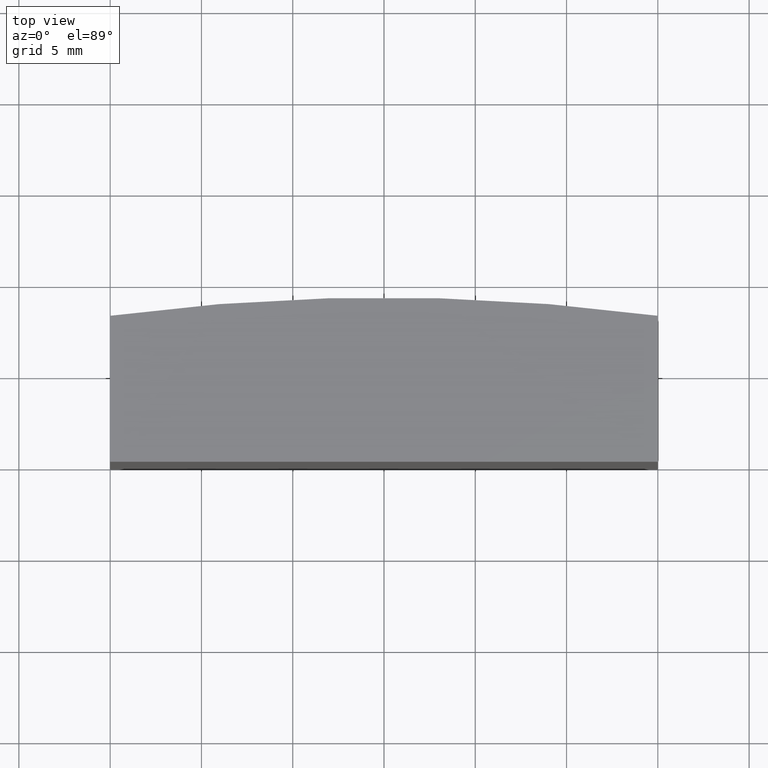
[diagram: clean part render]
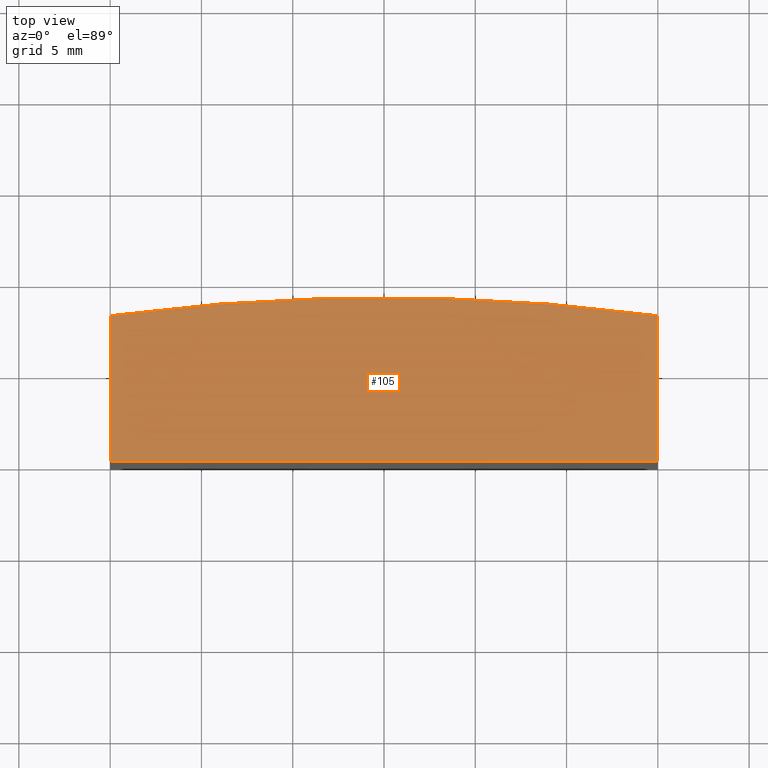
[diagram: same view with one face highlighted and labeled with its STEP entity id]
A machine part, top view. The second image highlights one B-rep face of the part: STEP entity #105.
In plain terms, the highlighted planar face has unit normal (0, 0, 1).
Its self-contained STEP definition (entity closure, byte-faithful):
#22=FACE_OUTER_BOUND('',#28,.T.);
#28=EDGE_LOOP('',(#91,#92,#93,#94));
#30=CIRCLE('',#133,113.);
#34=LINE('',#178,#44);
#38=LINE('',#187,#48);
#40=LINE('',#190,#50);
#44=VECTOR('',#148,10.);
#48=VECTOR('',#158,10.);
#50=VECTOR('',#162,10.);
#55=VERTEX_POINT('',#176);
#56=VERTEX_POINT('',#177);
#57=VERTEX_POINT('',#182);
#58=VERTEX_POINT('',#186);
#63=EDGE_CURVE('',#55,#56,#34,.T.);
#66=EDGE_CURVE('',#56,#57,#30,.T.);
#68=EDGE_CURVE('',#57,#58,#38,.T.);
#70=EDGE_CURVE('',#58,#55,#40,.T.);
#91=ORIENTED_EDGE('',*,*,#63,.F.);
#92=ORIENTED_EDGE('',*,*,#70,.F.);
#93=ORIENTED_EDGE('',*,*,#68,.F.);
#94=ORIENTED_EDGE('',*,*,#66,.F.);
#99=PLANE('',#136);
#105=ADVANCED_FACE('',(#22),#99,.T.);
#133=AXIS2_PLACEMENT_3D('',#183,#153,#154);
#136=AXIS2_PLACEMENT_3D('',#191,#163,#164);
#148=DIRECTION('',(2.77555756156289E-16,1.,0.));
#153=DIRECTION('center_axis',(0.,0.,-1.));
#154=DIRECTION('ref_axis',(-0.132743362831858,-0.991150442477876,0.));
#158=DIRECTION('',(2.77555756156289E-16,-1.,0.));
#162=DIRECTION('',(-1.,0.,0.));
#163=DIRECTION('center_axis',(0.,0.,1.));
#164=DIRECTION('ref_axis',(1.,0.,0.));
#176=CARTESIAN_POINT('',(-15.,0.,12.5));
#177=CARTESIAN_POINT('',(-15.,8.00000000000001,12.5));
#178=CARTESIAN_POINT('',(-15.,0.,12.5));
#182=CARTESIAN_POINT('',(15.,8.00000000000001,12.5));
#183=CARTESIAN_POINT('Origin',(0.,-104.,12.5));
#186=CARTESIAN_POINT('',(15.,0.,12.5));
#187=CARTESIAN_POINT('',(15.,8.00000000000001,12.5));
#190=CARTESIAN_POINT('',(15.,0.,12.5));
#191=CARTESIAN_POINT('Origin',(-1.11022302462516E-15,4.24186740196555,12.5));